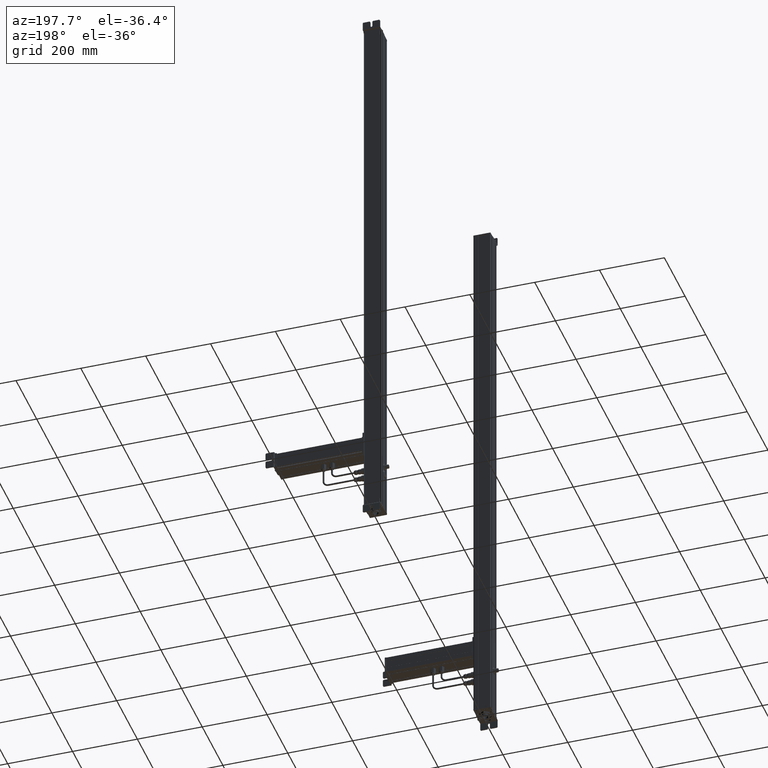
[diagram: clean part render]
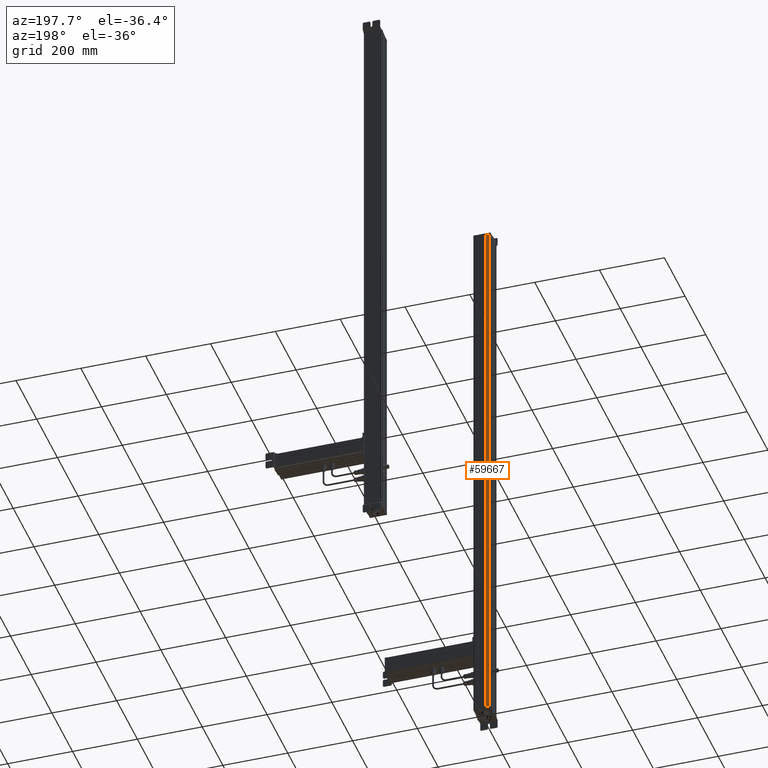
[diagram: same view with one face highlighted and labeled with its STEP entity id]
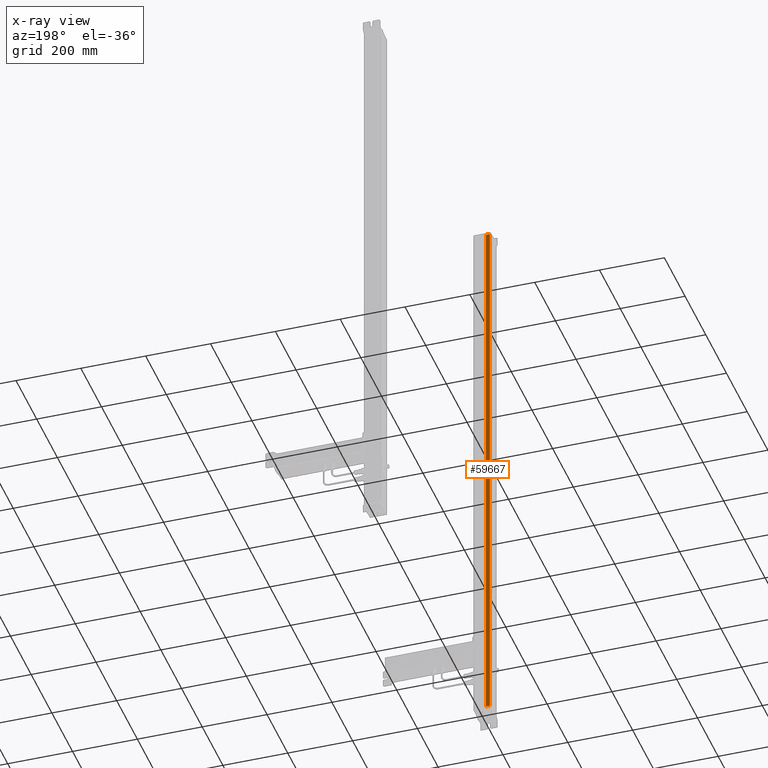
[diagram: x-ray of the same camera — body ghosted, the highlighted face saturated]
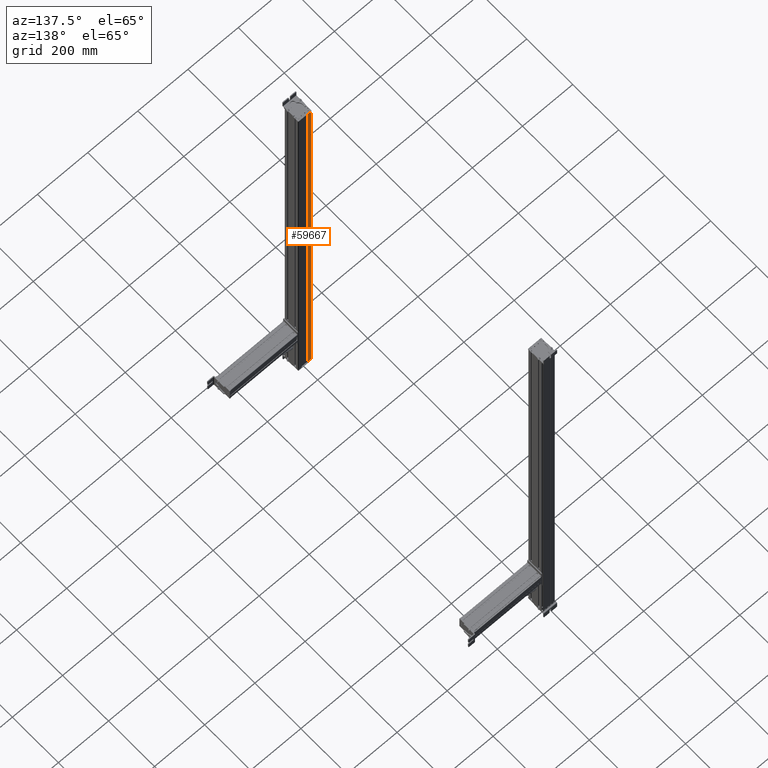
[diagram: same view with one face highlighted and labeled with its STEP entity id]
A machine part, auxiliary view. The second image highlights one B-rep face of the part: STEP entity #59667.
The next image is the same camera in x-ray: the body ghosted, the highlighted face saturated — about 0% of this face is hidden behind the body in this view.
A second angle (auxiliary view) of the same face is appended — the face is thin or edge-on in the first view.
In plain terms, the highlighted planar face has unit normal (0, 1, 0).
Its self-contained STEP definition (entity closure, byte-faithful):
#59615=CARTESIAN_POINT('Vertex',(627.895548938,182.060203323,0.)) ;
#59618=CARTESIAN_POINT('Line Origine',(627.895548938,182.060203323,861.)) ;
#59622=CARTESIAN_POINT('Vertex',(627.895548938,182.060203323,1722.)) ;
#59637=CARTESIAN_POINT('Axis2P3D Location',(664.195883662,182.060203323,0.)) ;
#59642=CARTESIAN_POINT('Line Origine',(621.545548937,182.060203323,0.)) ;
#59646=CARTESIAN_POINT('Vertex',(615.195548937,182.060203323,0.)) ;
#59649=CARTESIAN_POINT('Line Origine',(615.195548937,182.060203323,861.)) ;
#59653=CARTESIAN_POINT('Vertex',(615.195548937,182.060203323,1722.)) ;
#59656=CARTESIAN_POINT('Line Origine',(621.545548937,182.060203323,1722.)) ;
#59619=DIRECTION('Vector Direction',(0.,0.,1.)) ;
#59638=DIRECTION('Axis2P3D Direction',(0.,1.,-0.)) ;
#59639=DIRECTION('Axis2P3D XDirection',(-1.,0.,0.)) ;
#59643=DIRECTION('Vector Direction',(-1.,0.,0.)) ;
#59650=DIRECTION('Vector Direction',(0.,0.,1.)) ;
#59657=DIRECTION('Vector Direction',(-1.,0.,0.)) ;
#59640=AXIS2_PLACEMENT_3D('Plane Axis2P3D',#59637,#59638,#59639) ;
#59662=ORIENTED_EDGE('',*,*,#59624,.F.) ;
#59663=ORIENTED_EDGE('',*,*,#59648,.T.) ;
#59664=ORIENTED_EDGE('',*,*,#59655,.T.) ;
#59665=ORIENTED_EDGE('',*,*,#59660,.F.) ;
#59620=VECTOR('Line Direction',#59619,1.) ;
#59644=VECTOR('Line Direction',#59643,1.) ;
#59651=VECTOR('Line Direction',#59650,1.) ;
#59658=VECTOR('Line Direction',#59657,1.) ;
#59667=ADVANCED_FACE('Body.2',(#59666),#59641,.T.) ;
#59624=EDGE_CURVE('',#59616,#59623,#59621,.T.) ;
#59648=EDGE_CURVE('',#59616,#59647,#59645,.T.) ;
#59655=EDGE_CURVE('',#59647,#59654,#59652,.T.) ;
#59660=EDGE_CURVE('',#59623,#59654,#59659,.T.) ;
#59661=EDGE_LOOP('',(#59662,#59663,#59664,#59665)) ;
#59666=FACE_OUTER_BOUND('',#59661,.T.) ;
#59621=LINE('Line',#59618,#59620) ;
#59645=LINE('Line',#59642,#59644) ;
#59652=LINE('Line',#59649,#59651) ;
#59659=LINE('Line',#59656,#59658) ;
#59641=PLANE('Plane',#59640) ;
#59616=VERTEX_POINT('',#59615) ;
#59623=VERTEX_POINT('',#59622) ;
#59647=VERTEX_POINT('',#59646) ;
#59654=VERTEX_POINT('',#59653) ;